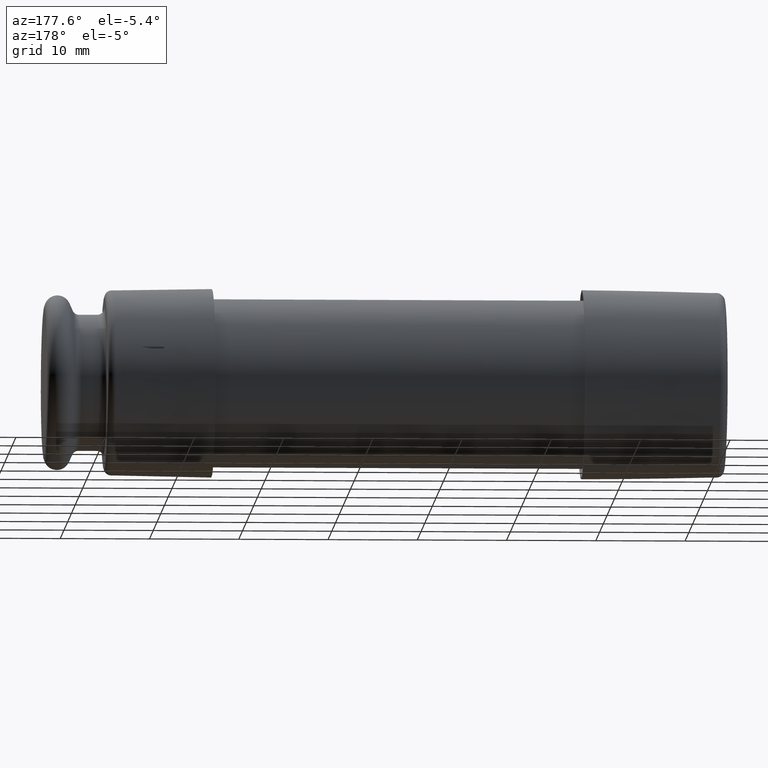
[diagram: clean part render]
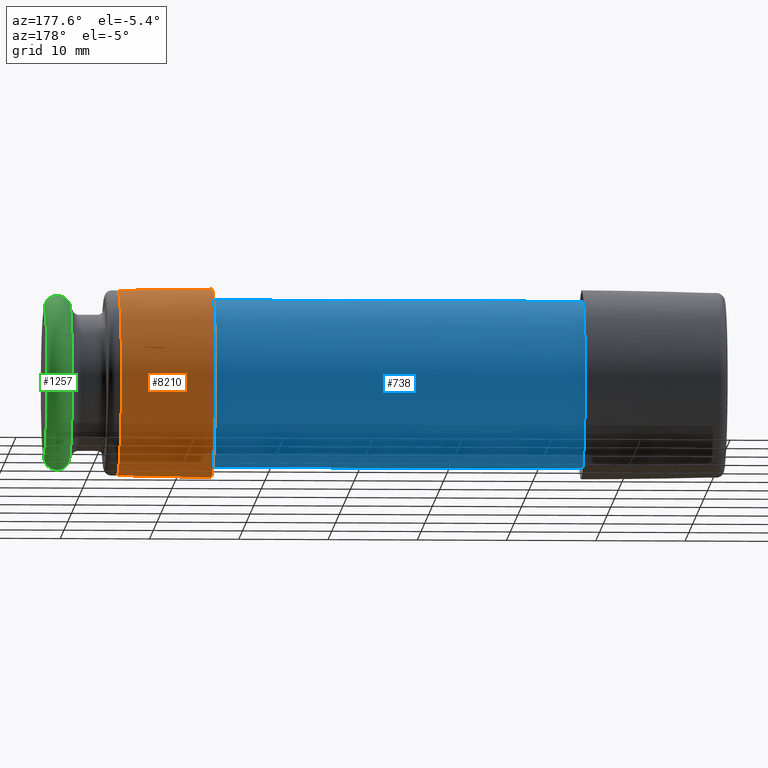
[diagram: same view with three faces highlighted in distinct colors, each labeled with its STEP entity id]
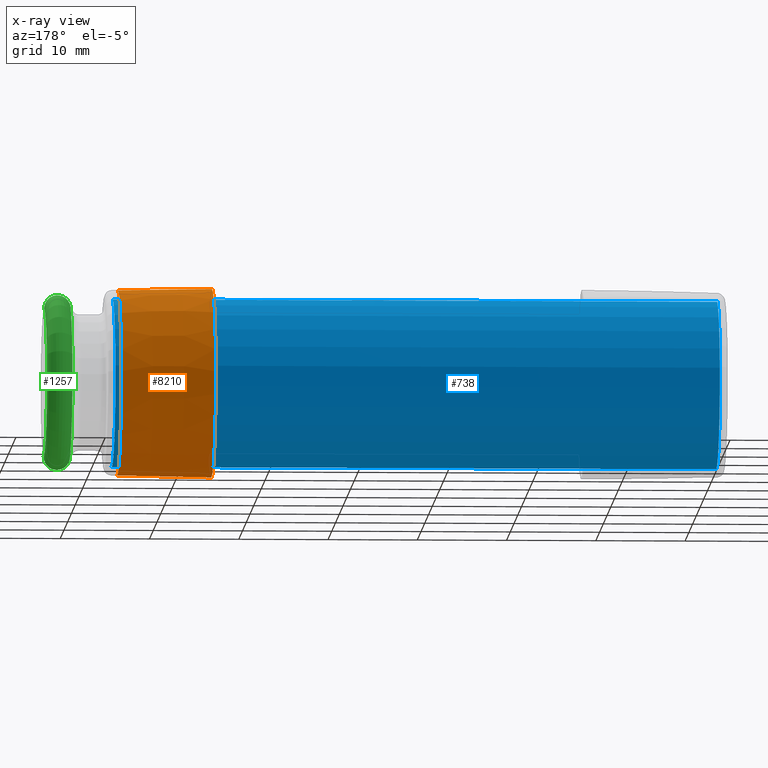
[diagram: x-ray of the same camera — body ghosted, the three highlighted faces saturated]
A machine part, auxiliary view with three faces highlighted in distinct colors.
The next image is the same camera in x-ray (body ghosted, the three faces saturated) — at least one of them is partly hidden behind the body in this view.
Their STEP definitions:

[orange] entity #8210 — the highlighted conical surface has half-angle 1 deg.
#510 = CONICAL_SURFACE ( 'NONE', #4000, 0.4152386731861223400, 0.01745329251994024200 ) ;
#678 = VECTOR ( 'NONE', #11592, 39.37007874015748900 ) ;
#703 = CARTESIAN_POINT ( 'NONE',  ( 1.006038410922482300, 0.03575428546478004500, 0.4136964911384571300 ) ) ;
#1072 = DIRECTION ( 'NONE',  ( 1.000000000000000000, 1.032664680745914000E-014, -2.629012118763709900E-015 ) ) ;
#1315 = VERTEX_POINT ( 'NONE', #2702 ) ;
#1604 = AXIS2_PLACEMENT_3D ( 'NONE', #11342, #3236, #4519 ) ;
#2475 = DIRECTION ( 'NONE',  ( -1.000000000000000000, -1.032664680745914000E-014, 2.629012118763709900E-015 ) ) ;
#2702 = CARTESIAN_POINT ( 'NONE',  ( 1.006038410922480900, -0.03575428546474060400, -0.4136964911384672900 ) ) ;
#2940 = DIRECTION ( 'NONE',  ( -2.008711760047252300E-015, -0.08610538414068724700, -0.9962860346416507800 ) ) ;
#3236 = DIRECTION ( 'NONE',  ( 1.000000000000000000, 1.032664680745914000E-014, -2.629012118763709900E-015 ) ) ;
#3280 = CIRCLE ( 'NONE', #1604, 0.4152386731861223400 ) ;
#3309 = EDGE_CURVE ( 'NONE', #1315, #9060, #3280, .T. ) ;
#3315 = CARTESIAN_POINT ( 'NONE',  ( 1.420741720013049000, 0.03513099672942456700, 0.4064847021337873500 ) ) ;
#3644 = EDGE_LOOP ( 'NONE', ( #4450, #9268, #11117, #5170 ) ) ;
#4000 = AXIS2_PLACEMENT_3D ( 'NONE', #10335, #2475, #9969 ) ;
#4004 = VECTOR ( 'NONE', #8154, 39.37007874015748100 ) ;
#4190 = FACE_OUTER_BOUND ( 'NONE', #3644, .T. ) ;
#4450 = ORIENTED_EDGE ( 'NONE', *, *, #9710, .F. ) ;
#4519 = DIRECTION ( 'NONE',  ( -1.644745642730492700E-015, -0.08610538414068724700, -0.9962860346416507800 ) ) ;
#5170 = ORIENTED_EDGE ( 'NONE', *, *, #7799, .F. ) ;
#5197 = LINE ( 'NONE', #5920, #678 ) ;
#5758 = EDGE_CURVE ( 'NONE', #10195, #1315, #5197, .T. ) ;
#5920 = CARTESIAN_POINT ( 'NONE',  ( 1.006038410922480900, -0.03575428546474060400, -0.4136964911384672900 ) ) ;
#7652 = CARTESIAN_POINT ( 'NONE',  ( 1.420741720013048100, 2.397564327672095200E-014, -6.134447544390337300E-015 ) ) ;
#7799 = EDGE_CURVE ( 'NONE', #8056, #9060, #8032, .T. ) ;
#8032 = LINE ( 'NONE', #703, #4004 ) ;
#8056 = VERTEX_POINT ( 'NONE', #3315 ) ;
#8154 = DIRECTION ( 'NONE',  ( -0.9998476951563912700, 0.001502746160451111900, 0.01738758880435520300 ) ) ;
#8210 = ADVANCED_FACE ( 'NONE', ( #4190 ), #510, .T. ) ;
#8221 = CARTESIAN_POINT ( 'NONE',  ( 1.420741720013047400, -0.03513099672937642500, -0.4064847021337997200 ) ) ;
#9060 = VERTEX_POINT ( 'NONE', #12138 ) ;
#9268 = ORIENTED_EDGE ( 'NONE', *, *, #5758, .T. ) ;
#9710 = EDGE_CURVE ( 'NONE', #10195, #8056, #11953, .T. ) ;
#9969 = DIRECTION ( 'NONE',  ( 1.644745642730492700E-015, 0.08610538414068724700, 0.9962860346416507800 ) ) ;
#10128 = AXIS2_PLACEMENT_3D ( 'NONE', #7652, #1072, #2940 ) ;
#10195 = VERTEX_POINT ( 'NONE', #8221 ) ;
#10335 = CARTESIAN_POINT ( 'NONE',  ( 1.006038410922481600, 1.969314867385811200E-014, -5.044187519099824600E-015 ) ) ;
#11117 = ORIENTED_EDGE ( 'NONE', *, *, #3309, .T. ) ;
#11342 = CARTESIAN_POINT ( 'NONE',  ( 1.006038410922481600, 1.969314867385811200E-014, -5.044187519099824600E-015 ) ) ;
#11592 = DIRECTION ( 'NONE',  ( -0.9998476951563912700, -0.001502746160471760100, -0.01738758880434994300 ) ) ;
#11953 = CIRCLE ( 'NONE', #10128, 0.4080000000000000300 ) ;
#12138 = CARTESIAN_POINT ( 'NONE',  ( 1.006038410922482300, 0.03575428546478004500, 0.4136964911384571300 ) ) ;

[blue] entity #738 — the highlighted cylindrical surface (partial cylindrical patch) has radius 9.4488 mm, axis along (1, 0, -0).
#87 = AXIS2_PLACEMENT_3D ( 'NONE', #12154, #12027, #5583 ) ;
#294 = CIRCLE ( 'NONE', #10416, 0.3720000000000001600 ) ;
#562 = EDGE_CURVE ( 'NONE', #8559, #10121, #1856, .T. ) ;
#738 = ADVANCED_FACE ( 'NONE', ( #4464 ), #3886, .T. ) ;
#740 = VERTEX_POINT ( 'NONE', #11358 ) ;
#1478 = CARTESIAN_POINT ( 'NONE',  ( -1.220258279986952100, -0.09095140298031677300, -0.3607101915609152200 ) ) ;
#1504 = CARTESIAN_POINT ( 'NONE',  ( 1.445741720013047800, 0.09095140298031671700, 0.3607101915609149400 ) ) ;
#1630 = ORIENTED_EDGE ( 'NONE', *, *, #2633, .F. ) ;
#1814 = DIRECTION ( 'NONE',  ( 0.0000000000000000000, -0.2444930187642919100, -0.9696510525831050200 ) ) ;
#1856 = LINE ( 'NONE', #1478, #4349 ) ;
#2633 = EDGE_CURVE ( 'NONE', #740, #8559, #294, .T. ) ;
#2739 = CARTESIAN_POINT ( 'NONE',  ( -1.220258279986952100, -1.107249231173536100E-016, 0.0000000000000000000 ) ) ;
#3096 = EDGE_CURVE ( 'NONE', #11726, #10121, #12088, .T. ) ;
#3124 = EDGE_LOOP ( 'NONE', ( #8219, #1630, #3989, #6964 ) ) ;
#3473 = LINE ( 'NONE', #10104, #6567 ) ;
#3886 = CYLINDRICAL_SURFACE ( 'NONE', #87, 0.3720000000000001600 ) ;
#3989 = ORIENTED_EDGE ( 'NONE', *, *, #5680, .T. ) ;
#4349 = VECTOR ( 'NONE', #9917, 39.37007874015748100 ) ;
#4464 = FACE_OUTER_BOUND ( 'NONE', #3124, .T. ) ;
#4600 = AXIS2_PLACEMENT_3D ( 'NONE', #5715, #10700, #12126 ) ;
#5583 = DIRECTION ( 'NONE',  ( 0.0000000000000000000, 0.2444930187642919100, 0.9696510525831050200 ) ) ;
#5680 = EDGE_CURVE ( 'NONE', #740, #11726, #3473, .T. ) ;
#5715 = CARTESIAN_POINT ( 'NONE',  ( 1.445741720013047800, 3.427380604109095900E-016, -1.815110943053711600E-016 ) ) ;
#6567 = VECTOR ( 'NONE', #8286, 39.37007874015748100 ) ;
#6964 = ORIENTED_EDGE ( 'NONE', *, *, #3096, .T. ) ;
#8219 = ORIENTED_EDGE ( 'NONE', *, *, #562, .F. ) ;
#8286 = DIRECTION ( 'NONE',  ( 1.000000000000000000, 1.700911416085008300E-016, -6.808368128483539900E-017 ) ) ;
#8406 = DIRECTION ( 'NONE',  ( -1.000000000000000000, -1.700911416085008300E-016, 6.808368128483539900E-017 ) ) ;
#8559 = VERTEX_POINT ( 'NONE', #9365 ) ;
#9365 = CARTESIAN_POINT ( 'NONE',  ( -1.220258279986952100, -0.09095140298031650900, -0.3607101915609152200 ) ) ;
#9917 = DIRECTION ( 'NONE',  ( 1.000000000000000000, 1.700911416085008300E-016, -6.808368128483539900E-017 ) ) ;
#10002 = CARTESIAN_POINT ( 'NONE',  ( 1.445741720013047800, -0.09095140298031652300, -0.3607101915609152700 ) ) ;
#10104 = CARTESIAN_POINT ( 'NONE',  ( -1.220258279986952100, 0.09095140298031652300, 0.3607101915609152200 ) ) ;
#10121 = VERTEX_POINT ( 'NONE', #10002 ) ;
#10416 = AXIS2_PLACEMENT_3D ( 'NONE', #2739, #8406, #1814 ) ;
#10700 = DIRECTION ( 'NONE',  ( -1.000000000000000000, -1.700911416085008300E-016, 6.808368128483539900E-017 ) ) ;
#11358 = CARTESIAN_POINT ( 'NONE',  ( -1.220258279986952100, 0.09095140298031674500, 0.3607101915609150500 ) ) ;
#11726 = VERTEX_POINT ( 'NONE', #1504 ) ;
#12027 = DIRECTION ( 'NONE',  ( 1.000000000000000000, 1.700911416085008300E-016, -6.808368128483539900E-017 ) ) ;
#12088 = CIRCLE ( 'NONE', #4600, 0.3720000000000001600 ) ;
#12126 = DIRECTION ( 'NONE',  ( 0.0000000000000000000, -0.2444930187642919100, -0.9696510525831050200 ) ) ;
#12154 = CARTESIAN_POINT ( 'NONE',  ( -1.220258279986952100, -1.107249231173536100E-016, 0.0000000000000000000 ) ) ;

[green] entity #1257 — the highlighted toroidal blend (fillet) surface has major radius 8.3019 mm and minor (blend) radius 1.4771 mm.
#142 = AXIS2_PLACEMENT_3D ( 'NONE', #8924, #11075, #338 ) ;
#338 = DIRECTION ( 'NONE',  ( -1.557691487505056600E-015, -0.08610538414068724700, -0.9962860346416507800 ) ) ;
#649 = AXIS2_PLACEMENT_3D ( 'NONE', #6133, #1752, #8987 ) ;
#1114 = DIRECTION ( 'NONE',  ( -1.730068168586470800E-015, -0.08610538414068724700, -0.9962860346416508900 ) ) ;
#1257 = ADVANCED_FACE ( 'NONE', ( #3300 ), #9474, .T. ) ;
#1494 = CARTESIAN_POINT ( 'NONE',  ( 1.687587309404753500, -0.02814316502923544900, -0.3256316961951827800 ) ) ;
#1752 = DIRECTION ( 'NONE',  ( -1.051466609734500200E-014, 0.9962860346416507800, -0.08610538414068737200 ) ) ;
#2694 = DIRECTION ( 'NONE',  ( -1.671644398658412300E-015, -0.08610538414068726100, -0.9962860346416508900 ) ) ;
#3183 = CIRCLE ( 'NONE', #11832, 0.05815441060829406500 ) ;
#3300 = FACE_OUTER_BOUND ( 'NONE', #11245, .T. ) ;
#3601 = DIRECTION ( 'NONE',  ( 0.0000000000000000000, -0.08610538414068724700, -0.9962860346416508900 ) ) ;
#3645 = CARTESIAN_POINT ( 'NONE',  ( 1.745741720013048100, 2.733180348914517200E-014, -6.988876482988542700E-015 ) ) ;
#4008 = ORIENTED_EDGE ( 'NONE', *, *, #7794, .T. ) ;
#4449 = CIRCLE ( 'NONE', #649, 0.05815441060829406500 ) ;
#4630 = CARTESIAN_POINT ( 'NONE',  ( 1.634575717623822000, -0.03020197809323388700, -0.3494532809203316800 ) ) ;
#6010 = CARTESIAN_POINT ( 'NONE',  ( 1.634575717623823100, 0.03020197809328629600, 0.3494532809203183500 ) ) ;
#6066 = CIRCLE ( 'NONE', #7752, 0.3268455893917059400 ) ;
#6133 = CARTESIAN_POINT ( 'NONE',  ( 1.687587309404754700, 0.02814316502928895100, 0.3256316961951691300 ) ) ;
#6317 = VERTEX_POINT ( 'NONE', #9860 ) ;
#6397 = VERTEX_POINT ( 'NONE', #4630 ) ;
#7647 = CARTESIAN_POINT ( 'NONE',  ( 1.687587309404754000, 2.673126343049736600E-014, -6.835987832739777500E-015 ) ) ;
#7686 = DIRECTION ( 'NONE',  ( 1.000000000000000000, 1.032664680745914000E-014, -2.629012118763709900E-015 ) ) ;
#7752 = AXIS2_PLACEMENT_3D ( 'NONE', #3645, #9317, #2694 ) ;
#7794 = EDGE_CURVE ( 'NONE', #10368, #6317, #4449, .T. ) ;
#8606 = EDGE_CURVE ( 'NONE', #6397, #10368, #10542, .T. ) ;
#8905 = ORIENTED_EDGE ( 'NONE', *, *, #9515, .F. ) ;
#8924 = CARTESIAN_POINT ( 'NONE',  ( 1.634575717623822500, 2.618383144547448000E-014, -6.696619715512752900E-015 ) ) ;
#8987 = DIRECTION ( 'NONE',  ( 0.0000000000000000000, 0.08610538414068739900, 0.9962860346416508900 ) ) ;
#9142 = DIRECTION ( 'NONE',  ( 1.051466609734500200E-014, -0.9962860346416507800, 0.08610538414068724700 ) ) ;
#9246 = CARTESIAN_POINT ( 'NONE',  ( 1.745741720013047600, -0.02814316502923485200, -0.3256316961951829500 ) ) ;
#9317 = DIRECTION ( 'NONE',  ( 1.000000000000000000, 1.032664680745914000E-014, -2.629012118763709900E-015 ) ) ;
#9363 = VERTEX_POINT ( 'NONE', #9246 ) ;
#9430 = AXIS2_PLACEMENT_3D ( 'NONE', #7647, #7686, #1114 ) ;
#9474 = TOROIDAL_SURFACE ( 'NONE', #9430, 0.3268455893917059400, 0.05815441060829407800 ) ;
#9515 = EDGE_CURVE ( 'NONE', #9363, #6317, #6066, .T. ) ;
#9860 = CARTESIAN_POINT ( 'NONE',  ( 1.745741720013048700, 0.02814316502928954800, 0.3256316961951690200 ) ) ;
#10368 = VERTEX_POINT ( 'NONE', #6010 ) ;
#10542 = CIRCLE ( 'NONE', #142, 0.3507559764661543600 ) ;
#10767 = ORIENTED_EDGE ( 'NONE', *, *, #8606, .T. ) ;
#11075 = DIRECTION ( 'NONE',  ( 1.000000000000000000, 1.032664680745914000E-014, -2.629012118763709900E-015 ) ) ;
#11098 = EDGE_CURVE ( 'NONE', #6397, #9363, #3183, .T. ) ;
#11245 = EDGE_LOOP ( 'NONE', ( #10767, #4008, #8905, #11513 ) ) ;
#11513 = ORIENTED_EDGE ( 'NONE', *, *, #11098, .F. ) ;
#11832 = AXIS2_PLACEMENT_3D ( 'NONE', #1494, #9142, #3601 ) ;